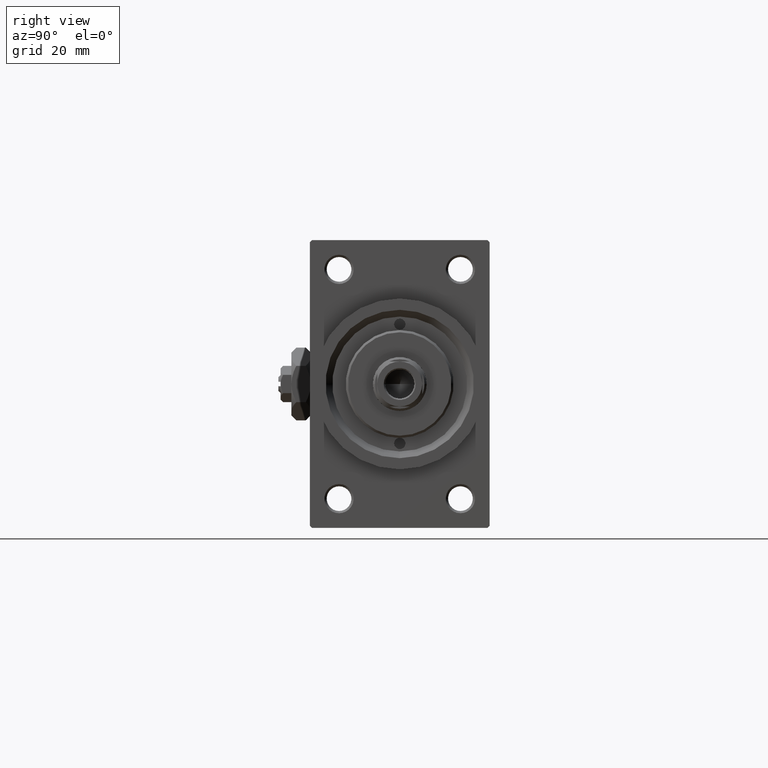
[diagram: clean part render]
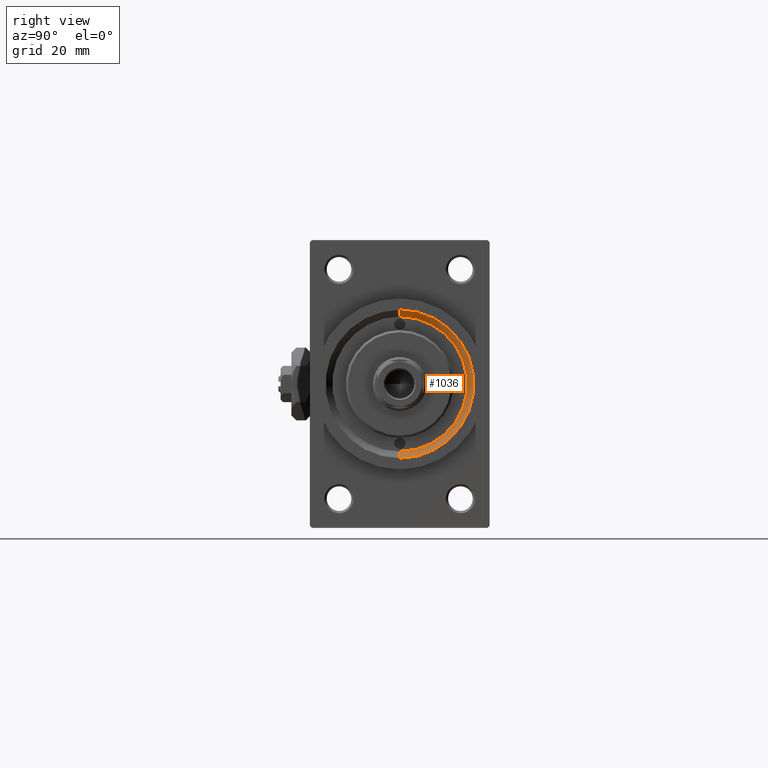
[diagram: same view with one face highlighted and labeled with its STEP entity id]
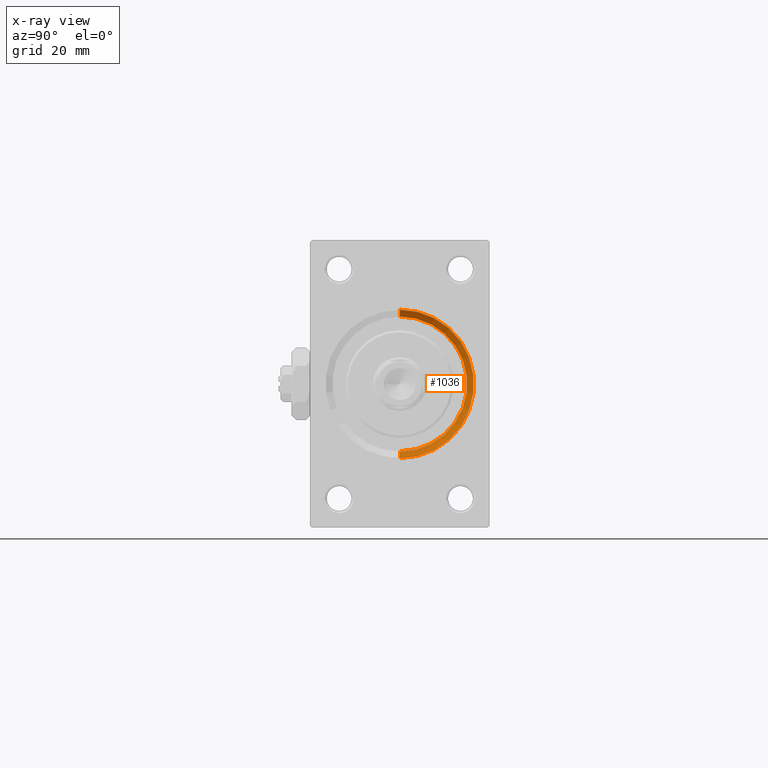
[diagram: x-ray of the same camera — body ghosted, the highlighted face saturated]
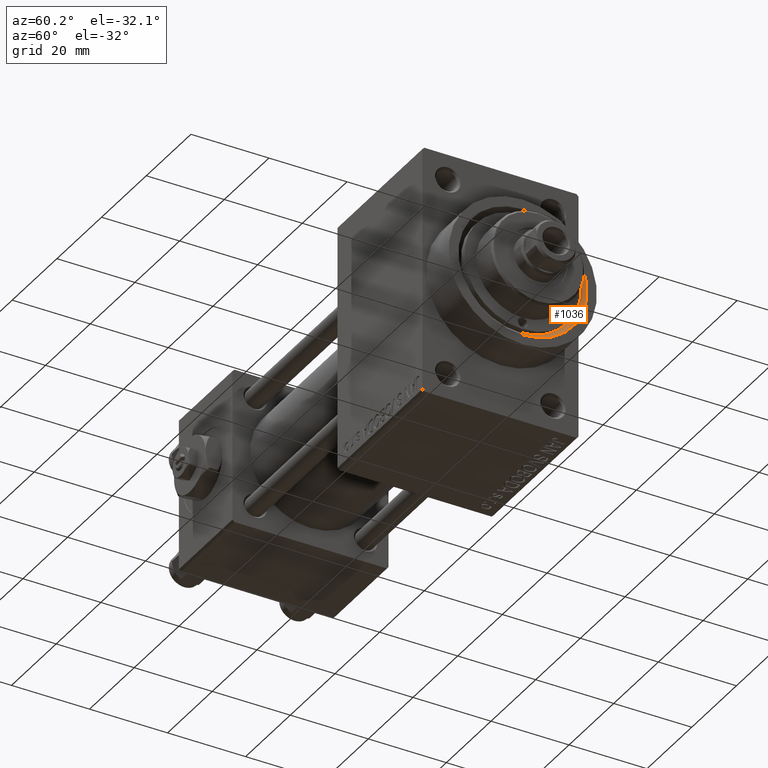
[diagram: same view with one face highlighted and labeled with its STEP entity id]
A machine part, right view. The second image highlights one B-rep face of the part: STEP entity #1036.
The next image is the same camera in x-ray: the body ghosted, the highlighted face saturated — about 0% of this face is hidden behind the body in this view.
A second angle (auxiliary view) of the same face is appended — the face is thin or edge-on in the first view.
In plain terms, the highlighted conical surface has half-angle 45 deg.
Its self-contained STEP definition (entity closure, byte-faithful):
#1036 = ADVANCED_FACE ( 'NONE', ( #15361 ), #7275, .F. ) ;
#1693 = DIRECTION ( 'NONE',  ( 0.7071067811865507924, 0.000000000000000000, -0.7071067811865441310 ) ) ;
#2730 = EDGE_CURVE ( 'NONE', #44465, #38259, #31775, .T. ) ;
#5601 = CIRCLE ( 'NONE', #15111, 15.00000000000000000 ) ;
#5642 = VERTEX_POINT ( 'NONE', #45918 ) ;
#7275 = CONICAL_SURFACE ( 'NONE', #31744, 15.00000000000000000, 0.7853981633974437271 ) ;
#7952 = EDGE_CURVE ( 'NONE', #5642, #38259, #35866, .T. ) ;
#9079 = EDGE_CURVE ( 'NONE', #48871, #44465, #47730, .T. ) ;
#9151 = CARTESIAN_POINT ( 'NONE',  ( 117.5000000000000000, 1.836970198721029589E-15, 15.00000000000000000 ) ) ;
#12578 = EDGE_CURVE ( 'NONE', #5642, #48871, #5601, .T. ) ;
#15111 = AXIS2_PLACEMENT_3D ( 'NONE', #29788, #44895, #40186 ) ;
#15361 = FACE_OUTER_BOUND ( 'NONE', #24108, .T. ) ;
#15709 = ORIENTED_EDGE ( 'NONE', *, *, #2730, .F. ) ;
#17269 = DIRECTION ( 'NONE',  ( 0.7071067811865507924, 8.659560562354892183E-17, 0.7071067811865441310 ) ) ;
#20667 = ORIENTED_EDGE ( 'NONE', *, *, #9079, .F. ) ;
#23890 = AXIS2_PLACEMENT_3D ( 'NONE', #24039, #24763, #24510 ) ;
#24039 = CARTESIAN_POINT ( 'NONE',  ( 119.0000000000000142, 0.000000000000000000, 0.000000000000000000 ) ) ;
#24108 = EDGE_LOOP ( 'NONE', ( #20667, #39264, #39917, #15709 ) ) ;
#24510 = DIRECTION ( 'NONE',  ( 0.000000000000000000, 0.000000000000000000, -1.000000000000000000 ) ) ;
#24763 = DIRECTION ( 'NONE',  ( -1.000000000000000000, -0.000000000000000000, -0.000000000000000000 ) ) ;
#27445 = CARTESIAN_POINT ( 'NONE',  ( 117.5000000000000000, 0.000000000000000000, 0.000000000000000000 ) ) ;
#29788 = CARTESIAN_POINT ( 'NONE',  ( 117.5000000000000000, 0.000000000000000000, 0.000000000000000000 ) ) ;
#30448 = DIRECTION ( 'NONE',  ( 0.000000000000000000, 0.000000000000000000, -1.000000000000000000 ) ) ;
#31149 = CARTESIAN_POINT ( 'NONE',  ( 117.5000000000000000, 1.836970198721029589E-15, 15.00000000000000000 ) ) ;
#31652 = CARTESIAN_POINT ( 'NONE',  ( 117.5000000000000000, 0.000000000000000000, -15.00000000000000000 ) ) ;
#31744 = AXIS2_PLACEMENT_3D ( 'NONE', #27445, #46026, #30448 ) ;
#31775 = CIRCLE ( 'NONE', #23890, 16.50000000000000000 ) ;
#35866 = LINE ( 'NONE', #31652, #38980 ) ;
#37457 = VECTOR ( 'NONE', #17269, 1000.000000000000114 ) ;
#38259 = VERTEX_POINT ( 'NONE', #40591 ) ;
#38980 = VECTOR ( 'NONE', #1693, 1000.000000000000114 ) ;
#39264 = ORIENTED_EDGE ( 'NONE', *, *, #12578, .F. ) ;
#39917 = ORIENTED_EDGE ( 'NONE', *, *, #7952, .T. ) ;
#40186 = DIRECTION ( 'NONE',  ( 0.000000000000000000, 0.000000000000000000, -1.000000000000000000 ) ) ;
#40591 = CARTESIAN_POINT ( 'NONE',  ( 119.0000000000000142, 0.000000000000000000, -16.50000000000000000 ) ) ;
#43206 = CARTESIAN_POINT ( 'NONE',  ( 119.0000000000000142, 2.020667218593132706E-15, 16.50000000000000000 ) ) ;
#44465 = VERTEX_POINT ( 'NONE', #43206 ) ;
#44895 = DIRECTION ( 'NONE',  ( 1.000000000000000000, 0.000000000000000000, 0.000000000000000000 ) ) ;
#45918 = CARTESIAN_POINT ( 'NONE',  ( 117.5000000000000000, 0.000000000000000000, -15.00000000000000000 ) ) ;
#46026 = DIRECTION ( 'NONE',  ( 1.000000000000000000, 0.000000000000000000, 0.000000000000000000 ) ) ;
#47730 = LINE ( 'NONE', #9151, #37457 ) ;
#48871 = VERTEX_POINT ( 'NONE', #31149 ) ;